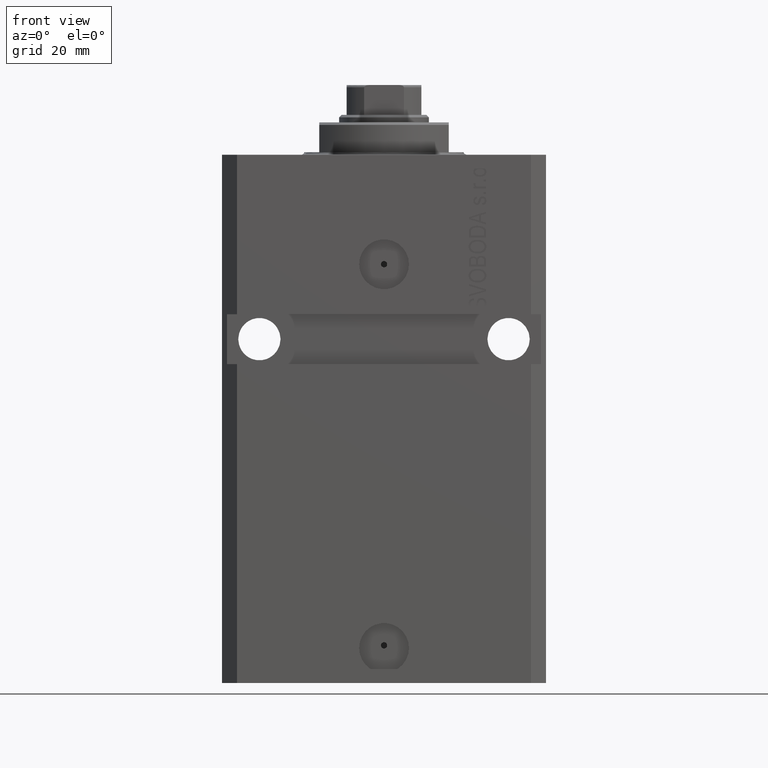
[diagram: clean part render]
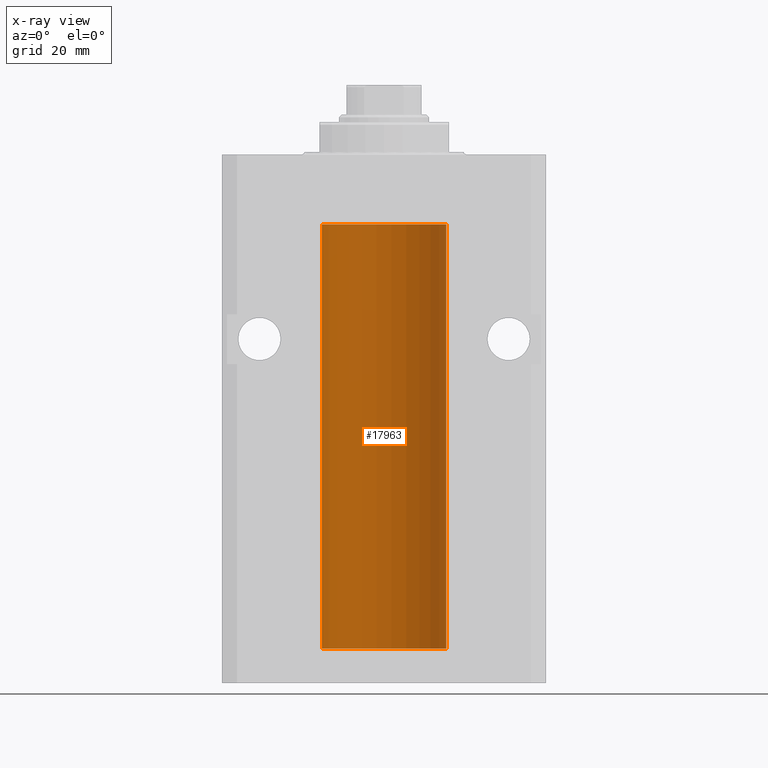
[diagram: x-ray — body ghosted, one internal face saturated and labeled with its STEP entity id]
A machine part, front view, then the same camera in x-ray: the body is ghosted and one INTERNAL B-rep face — a face not visible from any outside direction — is saturated and labeled: STEP entity #17963.
In plain terms, the highlighted cylindrical surface (partial cylindrical patch) has radius 12.5 mm, axis along (0, 0, 1).
Its self-contained STEP definition (entity closure, byte-faithful):
#534 = EDGE_CURVE ( 'NONE', #40244, #20351, #27203, .T. ) ;
#560 = ORIENTED_EDGE ( 'NONE', *, *, #27115, .F. ) ;
#668 = DIRECTION ( 'NONE',  ( 0.000000000000000000, 0.000000000000000000, 1.000000000000000000 ) ) ;
#710 = CARTESIAN_POINT ( 'NONE',  ( -12.48810268015257563, 0.5573155909661349217, -21.67347410093867666 ) ) ;
#787 = LINE ( 'NONE', #8192, #18757 ) ;
#905 = CARTESIAN_POINT ( 'NONE',  ( -12.49422197749723829, 0.3843754434364258232, -93.50047099568097053 ) ) ;
#984 = LINE ( 'NONE', #29866, #9163 ) ;
#1252 = CARTESIAN_POINT ( 'NONE',  ( -12.50000000000000000, 1.530808498934191521E-15, -99.09999999999999432 ) ) ;
#1277 = VERTEX_POINT ( 'NONE', #22382 ) ;
#1769 = CARTESIAN_POINT ( 'NONE',  ( 0.000000000000000000, 0.000000000000000000, -99.09999999999999432 ) ) ;
#2795 = CIRCLE ( 'NONE', #11889, 12.50000000000000000 ) ;
#3787 = EDGE_CURVE ( 'NONE', #32734, #7166, #9384, .T. ) ;
#4059 = CARTESIAN_POINT ( 'NONE',  ( -12.48436813453758454, 0.6249418250771192618, -21.83668996798922635 ) ) ;
#4827 = LINE ( 'NONE', #1252, #38229 ) ;
#5086 = CARTESIAN_POINT ( 'NONE',  ( 12.50000000000000000, 0.000000000000000000, -99.09999999999999432 ) ) ;
#5851 = EDGE_CURVE ( 'NONE', #7166, #43909, #2795, .T. ) ;
#5910 = CARTESIAN_POINT ( 'NONE',  ( -12.48520330846397997, 0.6088355886774070580, -94.16325431852561678 ) ) ;
#7166 = VERTEX_POINT ( 'NONE', #37139 ) ;
#7407 = CARTESIAN_POINT ( 'NONE',  ( -12.49422197749724006, 0.3843754434364375916, -21.50047099568095277 ) ) ;
#8013 = VECTOR ( 'NONE', #19654, 1000.000000000000000 ) ;
#8192 = CARTESIAN_POINT ( 'NONE',  ( -12.50000000000000000, 1.530808498934191521E-15, -99.09999999999999432 ) ) ;
#9163 = VECTOR ( 'NONE', #27000, 1000.000000000000000 ) ;
#9384 = LINE ( 'NONE', #5086, #8013 ) ;
#9734 = CARTESIAN_POINT ( 'NONE',  ( -12.50000000000017941, 3.883381774819353300E-13, -94.62500000000359535 ) ) ;
#9753 = ORIENTED_EDGE ( 'NONE', *, *, #3787, .T. ) ;
#10682 = ORIENTED_EDGE ( 'NONE', *, *, #23945, .T. ) ;
#11645 = CARTESIAN_POINT ( 'NONE',  ( -12.50000000000000000, 0.08260426088728006766, -93.37500000000000000 ) ) ;
#11738 = DIRECTION ( 'NONE',  ( 0.000000000000000000, 0.000000000000000000, 1.000000000000000000 ) ) ;
#11889 = AXIS2_PLACEMENT_3D ( 'NONE', #27020, #11738, #12441 ) ;
#12293 = CIRCLE ( 'NONE', #27584, 12.50000000000000000 ) ;
#12441 = DIRECTION ( 'NONE',  ( 1.000000000000000000, 0.000000000000000000, 0.000000000000000000 ) ) ;
#13801 = ORIENTED_EDGE ( 'NONE', *, *, #21896, .F. ) ;
#14340 = CARTESIAN_POINT ( 'NONE',  ( -12.49631005746706336, 0.3253680783018528255, -22.55856740465392463 ) ) ;
#16304 = DIRECTION ( 'NONE',  ( -0.000000000000000000, -0.000000000000000000, 1.000000000000000000 ) ) ;
#16867 = ORIENTED_EDGE ( 'NONE', *, *, #5851, .T. ) ;
#17544 = AXIS2_PLACEMENT_3D ( 'NONE', #1769, #41610, #20401 ) ;
#17963 = ADVANCED_FACE ( 'NONE', ( #23027 ), #27317, .F. ) ;
#18385 = CARTESIAN_POINT ( 'NONE',  ( -12.49915784441386890, 0.1636601911727947889, -21.39126818989430490 ) ) ;
#18622 = CARTESIAN_POINT ( 'NONE',  ( -12.48436376893640443, 0.6250290278979917513, -22.08132082824473486 ) ) ;
#18757 = VECTOR ( 'NONE', #16304, 1000.000000000000000 ) ;
#18853 = CARTESIAN_POINT ( 'NONE',  ( -12.50000000000000000, -2.089494013101375120E-17, -21.37499999999999645 ) ) ;
#18855 = CARTESIAN_POINT ( 'NONE',  ( -12.48809959379011403, 0.5462151254764975317, -22.31461370481611795 ) ) ;
#19052 = CARTESIAN_POINT ( 'NONE',  ( -12.50000000000000000, -1.511606575479395139E-14, -93.37500000000000000 ) ) ;
#19654 = DIRECTION ( 'NONE',  ( -0.000000000000000000, -0.000000000000000000, 1.000000000000000000 ) ) ;
#20351 = VERTEX_POINT ( 'NONE', #23565 ) ;
#20401 = DIRECTION ( 'NONE',  ( 1.000000000000000000, 0.000000000000000000, 0.000000000000000000 ) ) ;
#20487 = CARTESIAN_POINT ( 'NONE',  ( -12.49011732893843529, 0.5003763274120203164, -94.38348111289285214 ) ) ;
#20583 = VERTEX_POINT ( 'NONE', #33289 ) ;
#21747 = CARTESIAN_POINT ( 'NONE',  ( -12.50000000000017941, 3.883381646606358354E-13, -22.62500000000358824 ) ) ;
#21896 = EDGE_CURVE ( 'NONE', #24706, #20583, #4827, .T. ) ;
#21983 = CARTESIAN_POINT ( 'NONE',  ( -12.49011732893843529, 0.5003763274120274218, -22.38348111289287701 ) ) ;
#22212 = CARTESIAN_POINT ( 'NONE',  ( -12.48520330846397819, 0.6088355886774127201, -22.16325431852561323 ) ) ;
#22382 = CARTESIAN_POINT ( 'NONE',  ( -12.50000000000000000, -1.511606575479395139E-14, -93.37500000000000000 ) ) ;
#22497 = EDGE_CURVE ( 'NONE', #32734, #24706, #12293, .T. ) ;
#23027 = FACE_OUTER_BOUND ( 'NONE', #44543, .T. ) ;
#23223 = DIRECTION ( 'NONE',  ( -0.000000000000000000, -0.000000000000000000, 1.000000000000000000 ) ) ;
#23354 = CARTESIAN_POINT ( 'NONE',  ( -12.48436813453758631, 0.6249418250771134886, -93.83668996798924411 ) ) ;
#23565 = CARTESIAN_POINT ( 'NONE',  ( -12.50000000000017941, 3.883381646606358354E-13, -22.62500000000358824 ) ) ;
#23945 = EDGE_CURVE ( 'NONE', #1277, #20583, #35405, .T. ) ;
#24317 = CARTESIAN_POINT ( 'NONE',  ( -12.48436376893640620, 0.6250290278979873104, -94.08132082824474196 ) ) ;
#24706 = VERTEX_POINT ( 'NONE', #30328 ) ;
#26214 = DIRECTION ( 'NONE',  ( 1.000000000000000000, 0.000000000000000000, 0.000000000000000000 ) ) ;
#26217 = CARTESIAN_POINT ( 'NONE',  ( -12.49915784441387068, 0.1636601911727896541, -93.39126818989430490 ) ) ;
#26261 = CARTESIAN_POINT ( 'NONE',  ( -12.50000000000000000, 0.08260426088729219685, -21.37500000000000000 ) ) ;
#27000 = DIRECTION ( 'NONE',  ( -0.000000000000000000, -0.000000000000000000, 1.000000000000000000 ) ) ;
#27020 = CARTESIAN_POINT ( 'NONE',  ( 0.000000000000000000, 0.000000000000000000, -13.99999999999999822 ) ) ;
#27115 = EDGE_CURVE ( 'NONE', #40244, #43909, #984, .T. ) ;
#27203 = B_SPLINE_CURVE_WITH_KNOTS ( 'NONE', 3,
 ( #32950, #26261, #18385, #40560, #7407, #710, #4059, #18622, #22212, #18855, #21983, #14340, #43903, #21747 ),
 .UNSPECIFIED., .F., .F.,
 ( 4, 2, 2, 2, 2, 2, 4 ),
 ( 2.030551168097110502E-20, 0.0002442924852390969078, 0.0004885849704781938157, 0.0009771699409563880650, 0.001221462426195485135, 0.001465754911434582423, 0.001954339881912776130 ),
 .UNSPECIFIED. ) ;
#27301 = ORIENTED_EDGE ( 'NONE', *, *, #534, .T. ) ;
#27317 = CYLINDRICAL_SURFACE ( 'NONE', #17544, 12.50000000000000000 ) ;
#27584 = AXIS2_PLACEMENT_3D ( 'NONE', #33369, #668, #26214 ) ;
#28384 = CARTESIAN_POINT ( 'NONE',  ( -12.50000000000000000, 1.530808498934191521E-15, -13.99999999999999822 ) ) ;
#29866 = CARTESIAN_POINT ( 'NONE',  ( -12.50000000000000000, 1.530808498934191521E-15, -99.09999999999999432 ) ) ;
#30328 = CARTESIAN_POINT ( 'NONE',  ( -12.50000000000000000, 1.530808498934191521E-15, -99.09999999999999432 ) ) ;
#32734 = VERTEX_POINT ( 'NONE', #40036 ) ;
#32950 = CARTESIAN_POINT ( 'NONE',  ( -12.50000000000000000, -2.089494013101375120E-17, -21.37499999999999645 ) ) ;
#33289 = CARTESIAN_POINT ( 'NONE',  ( -12.50000000000017941, 3.883381774819353300E-13, -94.62500000000359535 ) ) ;
#33369 = CARTESIAN_POINT ( 'NONE',  ( 0.000000000000000000, 0.000000000000000000, -99.09999999999999432 ) ) ;
#33605 = CARTESIAN_POINT ( 'NONE',  ( -12.49625855304194033, 0.3150454781037995144, -93.45402800297489421 ) ) ;
#35405 = B_SPLINE_CURVE_WITH_KNOTS ( 'NONE', 3,
 ( #19052, #11645, #26217, #33605, #905, #37417, #23354, #24317, #5910, #38603, #20487, #38117, #45990, #9734 ),
 .UNSPECIFIED., .F., .F.,
 ( 4, 2, 2, 2, 2, 2, 4 ),
 ( 3.502709190597328199E-18, 0.0002442924852390829758, 0.0004885849704781623738, 0.0009771699409563507684, 0.001221462426195465403, 0.001465754911434580254, 0.001954339881912780900 ),
 .UNSPECIFIED. ) ;
#36664 = ORIENTED_EDGE ( 'NONE', *, *, #45502, .F. ) ;
#37139 = CARTESIAN_POINT ( 'NONE',  ( 12.50000000000000000, 0.000000000000000000, -13.99999999999999822 ) ) ;
#37417 = CARTESIAN_POINT ( 'NONE',  ( -12.48810268015257741, 0.5573155909661241525, -93.67347410093866245 ) ) ;
#38117 = CARTESIAN_POINT ( 'NONE',  ( -12.49631005746706514, 0.3253680783018460532, -94.55856740465389976 ) ) ;
#38229 = VECTOR ( 'NONE', #23223, 1000.000000000000000 ) ;
#38603 = CARTESIAN_POINT ( 'NONE',  ( -12.48809959379011403, 0.5462151254764923136, -94.31461370481612505 ) ) ;
#40036 = CARTESIAN_POINT ( 'NONE',  ( 12.50000000000000000, 0.000000000000000000, -99.09999999999999432 ) ) ;
#40244 = VERTEX_POINT ( 'NONE', #18853 ) ;
#40560 = CARTESIAN_POINT ( 'NONE',  ( -12.49625855304193678, 0.3150454781038042329, -21.45402800297484802 ) ) ;
#41610 = DIRECTION ( 'NONE',  ( -0.000000000000000000, -0.000000000000000000, 1.000000000000000000 ) ) ;
#43903 = CARTESIAN_POINT ( 'NONE',  ( -12.49999999999999289, 0.1631761135151241215, -22.62499999999984013 ) ) ;
#43909 = VERTEX_POINT ( 'NONE', #28384 ) ;
#44543 = EDGE_LOOP ( 'NONE', ( #13801, #46886, #9753, #16867, #560, #27301, #36664, #10682 ) ) ;
#45502 = EDGE_CURVE ( 'NONE', #1277, #20351, #787, .T. ) ;
#45990 = CARTESIAN_POINT ( 'NONE',  ( -12.49999999999999112, 0.1631761135151225950, -94.62499999999981526 ) ) ;
#46886 = ORIENTED_EDGE ( 'NONE', *, *, #22497, .F. ) ;